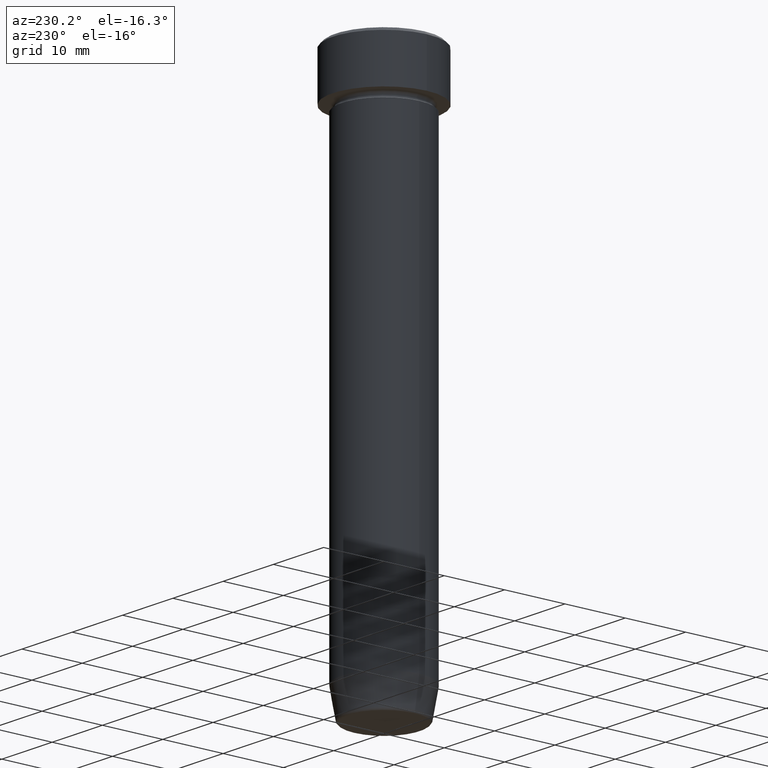
[diagram: clean part render]
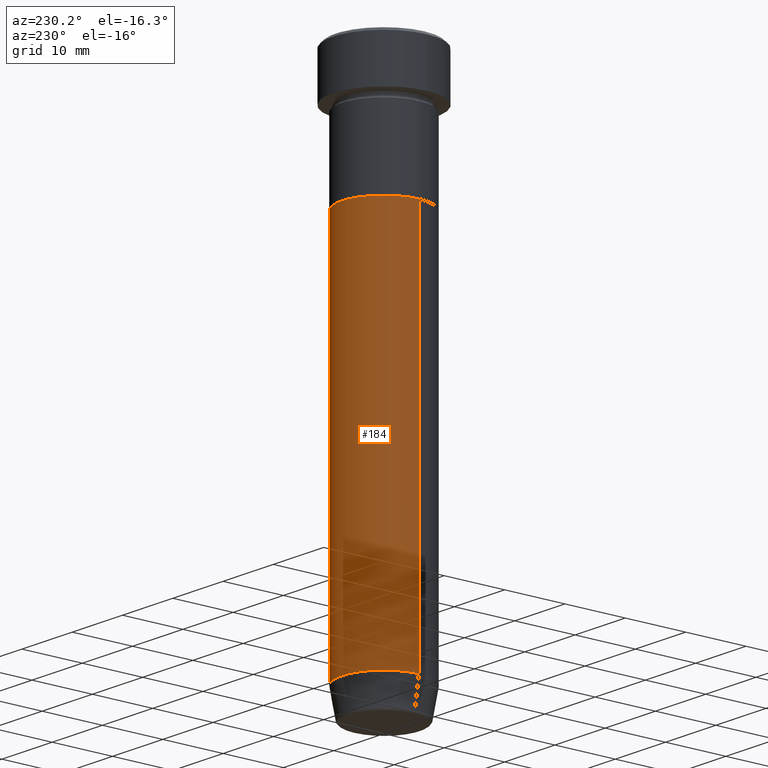
[diagram: same view with one face highlighted and labeled with its STEP entity id]
A machine part, auxiliary view. The second image highlights one B-rep face of the part: STEP entity #184.
In plain terms, the highlighted cylindrical surface (partial cylindrical patch) has radius 7 mm, axis along (-0, -0, 1).
Its self-contained STEP definition (entity closure, byte-faithful):
#5 = DIRECTION ( 'NONE',  ( 1.000000000000000000, 0.000000000000000000, 0.000000000000000000 ) ) ;
#16 = EDGE_CURVE ( 'NONE', #152, #329, #527, .T. ) ;
#40 = CYLINDRICAL_SURFACE ( 'NONE', #144, 6.999999999999999112 ) ;
#50 = EDGE_CURVE ( 'NONE', #287, #285, #212, .T. ) ;
#63 = CARTESIAN_POINT ( 'NONE',  ( -6.999999999999999112, 8.572527594031472204E-16, -84.99999999999998579 ) ) ;
#106 = DIRECTION ( 'NONE',  ( -0.000000000000000000, -0.000000000000000000, 1.000000000000000000 ) ) ;
#144 = AXIS2_PLACEMENT_3D ( 'NONE', #447, #106, #5 ) ;
#152 = VERTEX_POINT ( 'NONE', #185 ) ;
#178 = ORIENTED_EDGE ( 'NONE', *, *, #50, .T. ) ;
#184 = ADVANCED_FACE ( 'NONE', ( #186 ), #40, .T. ) ;
#185 = CARTESIAN_POINT ( 'NONE',  ( 6.999999999999999112, 0.000000000000000000, -22.00000000000000000 ) ) ;
#186 = FACE_OUTER_BOUND ( 'NONE', #494, .T. ) ;
#208 = DIRECTION ( 'NONE',  ( 1.000000000000000000, 0.000000000000000000, 0.000000000000000000 ) ) ;
#211 = CARTESIAN_POINT ( 'NONE',  ( 0.000000000000000000, 0.000000000000000000, -22.00000000000000000 ) ) ;
#212 = CIRCLE ( 'NONE', #438, 6.999999999999999112 ) ;
#213 = LINE ( 'NONE', #344, #596 ) ;
#214 = CARTESIAN_POINT ( 'NONE',  ( 0.000000000000000000, 0.000000000000000000, -84.99999999999998579 ) ) ;
#231 = AXIS2_PLACEMENT_3D ( 'NONE', #211, #434, #208 ) ;
#236 = CARTESIAN_POINT ( 'NONE',  ( 6.999999999999999112, 0.000000000000000000, -84.99999999999998579 ) ) ;
#247 = ORIENTED_EDGE ( 'NONE', *, *, #544, .T. ) ;
#255 = LINE ( 'NONE', #304, #375 ) ;
#285 = VERTEX_POINT ( 'NONE', #63 ) ;
#287 = VERTEX_POINT ( 'NONE', #236 ) ;
#299 = DIRECTION ( 'NONE',  ( -0.000000000000000000, -0.000000000000000000, 1.000000000000000000 ) ) ;
#304 = CARTESIAN_POINT ( 'NONE',  ( -6.999999999999999112, 8.572527594031472204E-16, 0.000000000000000000 ) ) ;
#329 = VERTEX_POINT ( 'NONE', #381 ) ;
#344 = CARTESIAN_POINT ( 'NONE',  ( 6.999999999999999112, 0.000000000000000000, 0.000000000000000000 ) ) ;
#375 = VECTOR ( 'NONE', #486, 1000.000000000000000 ) ;
#381 = CARTESIAN_POINT ( 'NONE',  ( -6.999999999999999112, 8.572527594031472204E-16, -22.00000000000000000 ) ) ;
#388 = DIRECTION ( 'NONE',  ( -0.000000000000000000, -0.000000000000000000, 1.000000000000000000 ) ) ;
#434 = DIRECTION ( 'NONE',  ( -0.000000000000000000, -0.000000000000000000, 1.000000000000000000 ) ) ;
#438 = AXIS2_PLACEMENT_3D ( 'NONE', #214, #299, #593 ) ;
#447 = CARTESIAN_POINT ( 'NONE',  ( 0.000000000000000000, 0.000000000000000000, 0.000000000000000000 ) ) ;
#461 = ORIENTED_EDGE ( 'NONE', *, *, #505, .F. ) ;
#486 = DIRECTION ( 'NONE',  ( -0.000000000000000000, -0.000000000000000000, 1.000000000000000000 ) ) ;
#494 = EDGE_LOOP ( 'NONE', ( #178, #247, #497, #461 ) ) ;
#497 = ORIENTED_EDGE ( 'NONE', *, *, #16, .F. ) ;
#505 = EDGE_CURVE ( 'NONE', #287, #152, #213, .T. ) ;
#527 = CIRCLE ( 'NONE', #231, 6.999999999999999112 ) ;
#544 = EDGE_CURVE ( 'NONE', #285, #329, #255, .T. ) ;
#593 = DIRECTION ( 'NONE',  ( 1.000000000000000000, 0.000000000000000000, 0.000000000000000000 ) ) ;
#596 = VECTOR ( 'NONE', #388, 1000.000000000000000 ) ;